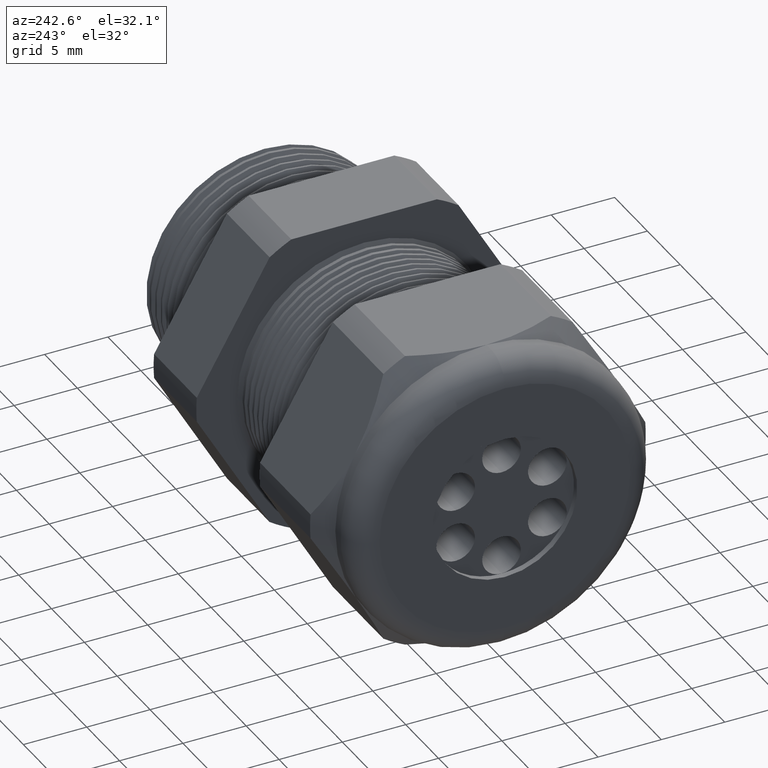
[diagram: clean part render]
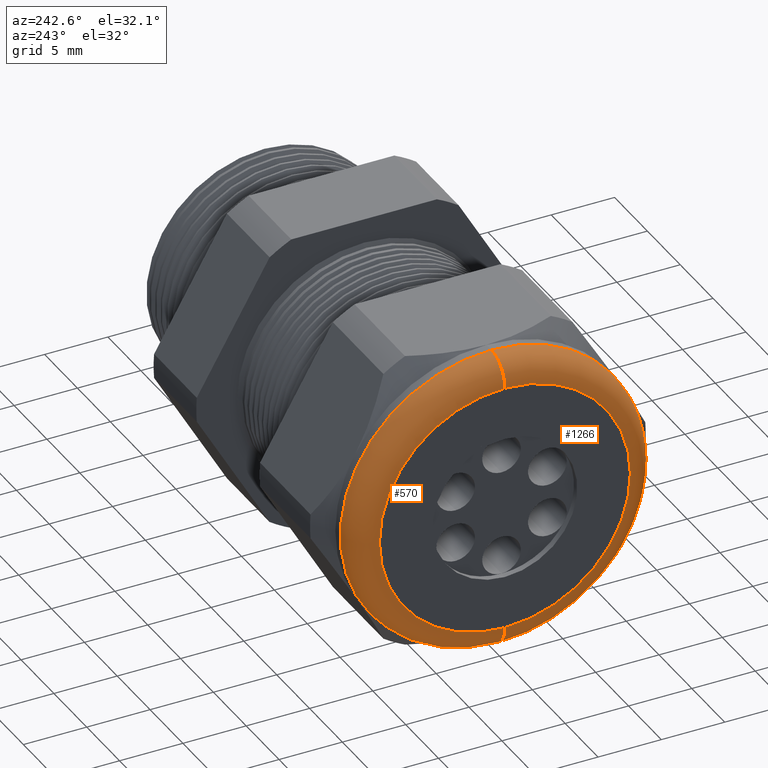
[diagram: same view with one multi-face feature highlighted, each face labeled with its STEP entity id]
A machine part, auxiliary view. The highlighted faces form ONE feature: a constant-radius fillet chain: 2 tangent blend faces with common blend radius 2.032 mm. The faces share edges in the B-rep.
Their STEP definitions:
[1] entity #570 (Torus):
#491 = VERTEX_POINT ( 'NONE', #2658 ) ;
#492 = VERTEX_POINT ( 'NONE', #2657 ) ;
#493 = ORIENTED_EDGE ( 'NONE', *, *, #549, .T. ) ;
#549 = EDGE_CURVE ( 'NONE', #491, #550, #2737, .T. ) ;
#550 = VERTEX_POINT ( 'NONE', #2732 ) ;
#551 = ORIENTED_EDGE ( 'NONE', *, *, #552, .F. ) ;
#552 = EDGE_CURVE ( 'NONE', #553, #550, #2793, .T. ) ;
#553 = VERTEX_POINT ( 'NONE', #2788 ) ;
#554 = ORIENTED_EDGE ( 'NONE', *, *, #555, .F. ) ;
#555 = EDGE_CURVE ( 'NONE', #492, #553, #2787, .T. ) ;
#570 = ADVANCED_FACE ( 'NONE', ( #2821 ), #2819, .T. ) ;
#571 = EDGE_LOOP ( 'NONE', ( #572, #493, #551, #554 ) ) ;
#572 = ORIENTED_EDGE ( 'NONE', *, *, #573, .F. ) ;
#573 = EDGE_CURVE ( 'NONE', #491, #492, #2815, .T. ) ;
#2657 = CARTESIAN_POINT ( 'NONE',  ( -1.330000000000000100, 5.755839955992558400E-017, 0.4699999999999999200 ) ) ;
#2658 = CARTESIAN_POINT ( 'NONE',  ( -1.330000000000000100, 0.0000000000000000000, -0.4699999999999999200 ) ) ;
#2732 = CARTESIAN_POINT ( 'NONE',  ( -1.409999999999999900, 5.265981236333617600E-017, -0.3899999999999999600 ) ) ;
#2733 = DIRECTION ( 'NONE',  ( 0.0000000000000000000, -1.224646799147353900E-016, 1.000000000000000000 ) ) ;
#2734 = DIRECTION ( 'NONE',  ( 0.0000000000000000000, 1.000000000000000000, 1.224646799147353200E-016 ) ) ;
#2735 = CARTESIAN_POINT ( 'NONE',  ( -1.330000000000000100, 4.776122516674676800E-017, -0.3899999999999999600 ) ) ;
#2736 = AXIS2_PLACEMENT_3D ( 'NONE', #2735, #2734, #2733 ) ;
#2737 = CIRCLE ( 'NONE', #2736, 0.07999999999999996000 ) ;
#2783 = DIRECTION ( 'NONE',  ( 0.0000000000000000000, 0.0000000000000000000, -1.000000000000000000 ) ) ;
#2784 = DIRECTION ( 'NONE',  ( 0.0000000000000000000, -1.000000000000000000, 0.0000000000000000000 ) ) ;
#2785 = CARTESIAN_POINT ( 'NONE',  ( -1.330000000000000100, 0.0000000000000000000, 0.3899999999999999600 ) ) ;
#2786 = AXIS2_PLACEMENT_3D ( 'NONE', #2785, #2784, #2783 ) ;
#2787 = CIRCLE ( 'NONE', #2786, 0.07999999999999996000 ) ;
#2788 = CARTESIAN_POINT ( 'NONE',  ( -1.409999999999999900, 0.0000000000000000000, 0.3899999999999999600 ) ) ;
#2789 = DIRECTION ( 'NONE',  ( 0.0000000000000000000, 0.0000000000000000000, 1.000000000000000000 ) ) ;
#2790 = DIRECTION ( 'NONE',  ( -1.000000000000000000, 0.0000000000000000000, 0.0000000000000000000 ) ) ;
#2791 = CARTESIAN_POINT ( 'NONE',  ( -1.409999999999999900, 0.0000000000000000000, 0.0000000000000000000 ) ) ;
#2792 = AXIS2_PLACEMENT_3D ( 'NONE', #2791, #2790, #2789 ) ;
#2793 = CIRCLE ( 'NONE', #2792, 0.3899999999999999600 ) ;
#2811 = DIRECTION ( 'NONE',  ( 0.0000000000000000000, 0.0000000000000000000, 1.000000000000000000 ) ) ;
#2812 = DIRECTION ( 'NONE',  ( 1.000000000000000000, 0.0000000000000000000, 0.0000000000000000000 ) ) ;
#2813 = CARTESIAN_POINT ( 'NONE',  ( -1.330000000000000100, 0.0000000000000000000, 0.0000000000000000000 ) ) ;
#2814 = AXIS2_PLACEMENT_3D ( 'NONE', #2813, #2812, #2811 ) ;
#2815 = CIRCLE ( 'NONE', #2814, 0.4699999999999999200 ) ;
#2816 = DIRECTION ( 'NONE',  ( 0.0000000000000000000, 0.0000000000000000000, 1.000000000000000000 ) ) ;
#2817 = DIRECTION ( 'NONE',  ( -1.000000000000000000, 0.0000000000000000000, 0.0000000000000000000 ) ) ;
#2818 = AXIS2_PLACEMENT_3D ( 'NONE', #2820, #2817, #2816 ) ;
#2819 = TOROIDAL_SURFACE ( 'NONE', #2818, 0.3899999999999999600, 0.08000000000000000200 ) ;
#2820 = CARTESIAN_POINT ( 'NONE',  ( -1.330000000000000100, 0.0000000000000000000, 0.0000000000000000000 ) ) ;
#2821 = FACE_OUTER_BOUND ( 'NONE', #571, .T. ) ;
[2] entity #1266 (Torus):
#491 = VERTEX_POINT ( 'NONE', #2658 ) ;
#492 = VERTEX_POINT ( 'NONE', #2657 ) ;
#549 = EDGE_CURVE ( 'NONE', #491, #550, #2737, .T. ) ;
#550 = VERTEX_POINT ( 'NONE', #2732 ) ;
#553 = VERTEX_POINT ( 'NONE', #2788 ) ;
#555 = EDGE_CURVE ( 'NONE', #492, #553, #2787, .T. ) ;
#1107 = EDGE_CURVE ( 'NONE', #550, #553, #3862, .T. ) ;
#1169 = EDGE_CURVE ( 'NONE', #492, #491, #4008, .T. ) ;
#1266 = ADVANCED_FACE ( 'NONE', ( #4115 ), #4176, .T. ) ;
#1267 = EDGE_LOOP ( 'NONE', ( #1324, #1325, #1326, #1327 ) ) ;
#1324 = ORIENTED_EDGE ( 'NONE', *, *, #549, .F. ) ;
#1325 = ORIENTED_EDGE ( 'NONE', *, *, #1169, .F. ) ;
#1326 = ORIENTED_EDGE ( 'NONE', *, *, #555, .T. ) ;
#1327 = ORIENTED_EDGE ( 'NONE', *, *, #1107, .F. ) ;
#2657 = CARTESIAN_POINT ( 'NONE',  ( -1.330000000000000100, 5.755839955992558400E-017, 0.4699999999999999200 ) ) ;
#2658 = CARTESIAN_POINT ( 'NONE',  ( -1.330000000000000100, 0.0000000000000000000, -0.4699999999999999200 ) ) ;
#2732 = CARTESIAN_POINT ( 'NONE',  ( -1.409999999999999900, 5.265981236333617600E-017, -0.3899999999999999600 ) ) ;
#2733 = DIRECTION ( 'NONE',  ( 0.0000000000000000000, -1.224646799147353900E-016, 1.000000000000000000 ) ) ;
#2734 = DIRECTION ( 'NONE',  ( 0.0000000000000000000, 1.000000000000000000, 1.224646799147353200E-016 ) ) ;
#2735 = CARTESIAN_POINT ( 'NONE',  ( -1.330000000000000100, 4.776122516674676800E-017, -0.3899999999999999600 ) ) ;
#2736 = AXIS2_PLACEMENT_3D ( 'NONE', #2735, #2734, #2733 ) ;
#2737 = CIRCLE ( 'NONE', #2736, 0.07999999999999996000 ) ;
#2783 = DIRECTION ( 'NONE',  ( 0.0000000000000000000, 0.0000000000000000000, -1.000000000000000000 ) ) ;
#2784 = DIRECTION ( 'NONE',  ( 0.0000000000000000000, -1.000000000000000000, 0.0000000000000000000 ) ) ;
#2785 = CARTESIAN_POINT ( 'NONE',  ( -1.330000000000000100, 0.0000000000000000000, 0.3899999999999999600 ) ) ;
#2786 = AXIS2_PLACEMENT_3D ( 'NONE', #2785, #2784, #2783 ) ;
#2787 = CIRCLE ( 'NONE', #2786, 0.07999999999999996000 ) ;
#2788 = CARTESIAN_POINT ( 'NONE',  ( -1.409999999999999900, 0.0000000000000000000, 0.3899999999999999600 ) ) ;
#3858 = DIRECTION ( 'NONE',  ( 0.0000000000000000000, 0.0000000000000000000, 1.000000000000000000 ) ) ;
#3859 = DIRECTION ( 'NONE',  ( -1.000000000000000000, 0.0000000000000000000, 0.0000000000000000000 ) ) ;
#3860 = CARTESIAN_POINT ( 'NONE',  ( -1.409999999999999900, 0.0000000000000000000, 0.0000000000000000000 ) ) ;
#3861 = AXIS2_PLACEMENT_3D ( 'NONE', #3860, #3859, #3858 ) ;
#3862 = CIRCLE ( 'NONE', #3861, 0.3899999999999999600 ) ;
#4005 = DIRECTION ( 'NONE',  ( 0.0000000000000000000, 0.0000000000000000000, 1.000000000000000000 ) ) ;
#4006 = DIRECTION ( 'NONE',  ( 1.000000000000000000, 0.0000000000000000000, 0.0000000000000000000 ) ) ;
#4007 = AXIS2_PLACEMENT_3D ( 'NONE', #4014, #4006, #4005 ) ;
#4008 = CIRCLE ( 'NONE', #4007, 0.4699999999999999200 ) ;
#4014 = CARTESIAN_POINT ( 'NONE',  ( -1.330000000000000100, 0.0000000000000000000, 0.0000000000000000000 ) ) ;
#4115 = FACE_OUTER_BOUND ( 'NONE', #1267, .T. ) ;
#4172 = DIRECTION ( 'NONE',  ( 0.0000000000000000000, 0.0000000000000000000, 1.000000000000000000 ) ) ;
#4173 = DIRECTION ( 'NONE',  ( -1.000000000000000000, 0.0000000000000000000, 0.0000000000000000000 ) ) ;
#4174 = CARTESIAN_POINT ( 'NONE',  ( -1.330000000000000100, 0.0000000000000000000, 0.0000000000000000000 ) ) ;
#4175 = AXIS2_PLACEMENT_3D ( 'NONE', #4174, #4173, #4172 ) ;
#4176 = TOROIDAL_SURFACE ( 'NONE', #4175, 0.3899999999999999600, 0.08000000000000000200 ) ;